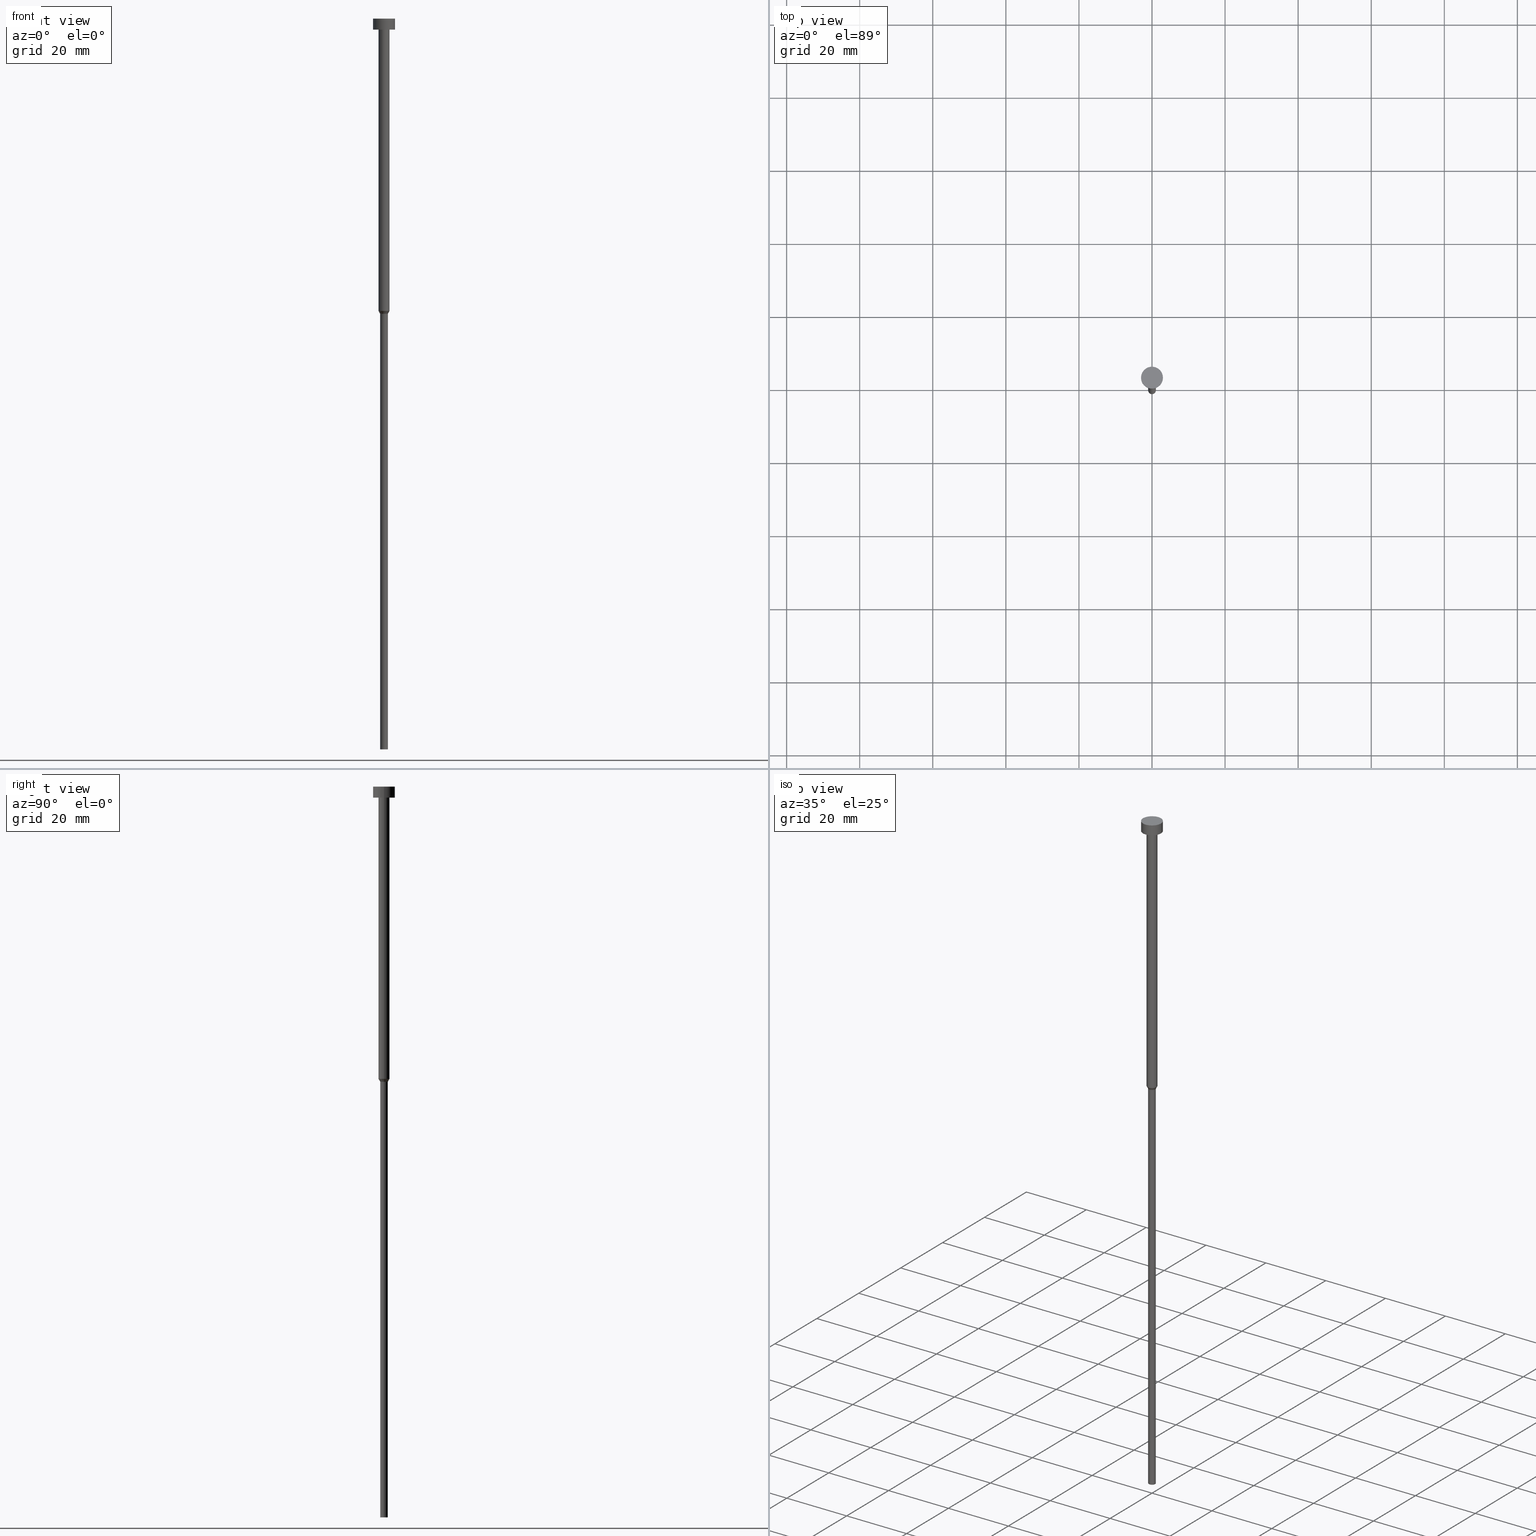
[diagram: canonical four-view strip — front | top / right | iso, engineering-drawing reading convention]
A machine part, canonical four-view strip (front | top / right | iso — engineering-drawing reading convention). The complete STEP part file that produces these views, byte-faithful:
ISO-10303-21;
HEADER;
FILE_DESCRIPTION (( 'STEP AP203' ),
    '1' );
FILE_NAME ('960d.STEP',
    '2023-02-13T09:03:21',
    ( '' ),
    ( '' ),
    'SwSTEP 2.0',
    'SolidWorks 2019',
    '' );
FILE_SCHEMA (( 'CONFIG_CONTROL_DESIGN' ));
ENDSEC;

DATA;
#1 = CC_DESIGN_PERSON_AND_ORGANIZATION_ASSIGNMENT ( #76, #188, ( #14 ) ) ;
#2 = AXIS2_PLACEMENT_3D ( 'NONE', #349, #266, #321 ) ;
#3 = CARTESIAN_POINT ( 'NONE',  ( 3.000000000000000000, 0.000000000000000000, -3.000000000000000888 ) ) ;
#4 = CIRCLE ( 'NONE', #215, 1.500000000000000000 ) ;
#5 = CARTESIAN_POINT ( 'NONE',  ( 0.000000000000000000, 0.000000000000000000, -3.000000000000000888 ) ) ;
#6 = EDGE_CURVE ( 'NONE', #292, #20, #126, .T. ) ;
#7 = DIRECTION ( 'NONE',  ( 0.000000000000000000, 0.000000000000000000, -1.000000000000000000 ) ) ;
#8 = PLANE ( 'NONE',  #250 ) ;
#9 = VERTEX_POINT ( 'NONE', #264 ) ;
#10 = ORIENTED_EDGE ( 'NONE', *, *, #333, .F. ) ;
#11 = DIRECTION ( 'NONE',  ( 0.000000000000000000, 0.000000000000000000, 1.000000000000000000 ) ) ;
#12 = FACE_OUTER_BOUND ( 'NONE', #122, .T. ) ;
#13 = APPROVAL_STATUS ( 'not_yet_approved' ) ;
#14 = PRODUCT_DEFINITION_FORMATION_WITH_SPECIFIED_SOURCE ( 'LIBOVOLN�', '', #182, .NOT_KNOWN. ) ;
#15 = ORIENTED_EDGE ( 'NONE', *, *, #268, .F. ) ;
#16 = SHAPE_DEFINITION_REPRESENTATION ( #67, #300 ) ;
#17 = CC_DESIGN_PERSON_AND_ORGANIZATION_ASSIGNMENT ( #71, #40, ( #14 ) ) ;
#18 = EDGE_LOOP ( 'NONE', ( #240, #309 ) ) ;
#19 = CALENDAR_DATE ( 2023, 13, 2 ) ;
#20 = VERTEX_POINT ( 'NONE', #148 ) ;
#21 = CIRCLE ( 'NONE', #303, 1.050000000000000044 ) ;
#22 = APPROVAL_ROLE ( '' ) ;
#23 = DIRECTION ( 'NONE',  ( 1.000000000000000000, 0.000000000000000000, 0.000000000000000000 ) ) ;
#24 = SECURITY_CLASSIFICATION ( '', '', #104 ) ;
#25 = CARTESIAN_POINT ( 'NONE',  ( 0.000000000000000000, 0.000000000000000000, -80.00000000000000000 ) ) ;
#26 = CC_DESIGN_PERSON_AND_ORGANIZATION_ASSIGNMENT ( #130, #243, ( #163 ) ) ;
#27 = DIRECTION ( 'NONE',  ( -0.000000000000000000, -0.000000000000000000, 1.000000000000000000 ) ) ;
#28 = LINE ( 'NONE', #327, #225 ) ;
#29 = CARTESIAN_POINT ( 'NONE',  ( 0.000000000000000000, 0.000000000000000000, -80.00000000000000000 ) ) ;
#30 = FACE_OUTER_BOUND ( 'NONE', #211, .T. ) ;
#31 = AXIS2_PLACEMENT_3D ( 'NONE', #258, #36, #261 ) ;
#32 = ORIENTED_EDGE ( 'NONE', *, *, #236, .T. ) ;
#33 = LINE ( 'NONE', #114, #305 ) ;
#34 = EDGE_CURVE ( 'NONE', #315, #9, #151, .T. ) ;
#35 = EDGE_LOOP ( 'NONE', ( #185, #65, #113, #283 ) ) ;
#36 = DIRECTION ( 'NONE',  ( -0.000000000000000000, -0.000000000000000000, 1.000000000000000000 ) ) ;
#37 = DIRECTION ( 'NONE',  ( -0.000000000000000000, -0.000000000000000000, 1.000000000000000000 ) ) ;
#38 = ADVANCED_FACE ( 'NONE', ( #12 ), #325, .T. ) ;
#39 = ORIENTED_EDGE ( 'NONE', *, *, #34, .F. ) ;
#40 = PERSON_AND_ORGANIZATION_ROLE ( 'design_supplier' ) ;
#41 = AXIS2_PLACEMENT_3D ( 'NONE', #147, #7, #64 ) ;
#42 = CARTESIAN_POINT ( 'NONE',  ( 0.000000000000000000, 0.000000000000000000, -3.000000000000000888 ) ) ;
#43 = COORDINATED_UNIVERSAL_TIME_OFFSET ( 1, 0, .AHEAD. ) ;
#44 = VERTEX_POINT ( 'NONE', #132 ) ;
#45 = APPROVAL_DATE_TIME ( #73, #144 ) ;
#46 = AXIS2_PLACEMENT_3D ( 'NONE', #228, #221, #198 ) ;
#47 = EDGE_CURVE ( 'NONE', #209, #345, #89, .T. ) ;
#48 = DIRECTION ( 'NONE',  ( -0.000000000000000000, -0.000000000000000000, 1.000000000000000000 ) ) ;
#49 = ADVANCED_FACE ( 'NONE', ( #323 ), #244, .T. ) ;
#50 =( GEOMETRIC_REPRESENTATION_CONTEXT ( 3 ) GLOBAL_UNCERTAINTY_ASSIGNED_CONTEXT ( ( #281 ) ) GLOBAL_UNIT_ASSIGNED_CONTEXT ( ( #308, #88, #180 ) ) REPRESENTATION_CONTEXT ( 'NONE', 'WORKASPACE' ) );
#51 = DIRECTION ( 'NONE',  ( -0.000000000000000000, -0.000000000000000000, 1.000000000000000000 ) ) ;
#52 = CYLINDRICAL_SURFACE ( 'NONE', #121, 3.000000000000000000 ) ;
#53 = CYLINDRICAL_SURFACE ( 'NONE', #81, 1.500000000000000000 ) ;
#54 = EDGE_CURVE ( 'NONE', #315, #292, #302, .T. ) ;
#55 = PERSON ( 'NEUR�EN�', 'NEUR�EN�', 'NEUR�EN�', ('NEUR�EN�'), ('NEUR�EN�'), ('NEUR�EN�') ) ;
#56 = PLANE ( 'NONE',  #41 ) ;
#57 = APPROVAL_PERSON_ORGANIZATION ( #217, #144, #263 ) ;
#58 = DIRECTION ( 'NONE',  ( -0.000000000000000000, -0.000000000000000000, 1.000000000000000000 ) ) ;
#59 = CARTESIAN_POINT ( 'NONE',  ( -1.500000000000000000, 1.836970198721029934E-16, -80.00000000000000000 ) ) ;
#60 = ORIENTED_EDGE ( 'NONE', *, *, #150, .F. ) ;
#61 = EDGE_CURVE ( 'NONE', #44, #310, #253, .T. ) ;
#62 = CARTESIAN_POINT ( 'NONE',  ( 1.500000000000000000, 0.000000000000000000, -80.00000000000000000 ) ) ;
#63 = VERTEX_POINT ( 'NONE', #137 ) ;
#64 = DIRECTION ( 'NONE',  ( -1.000000000000000000, 0.000000000000000000, -0.000000000000000000 ) ) ;
#65 = ORIENTED_EDGE ( 'NONE', *, *, #94, .T. ) ;
#66 = APPROVAL_ROLE ( '' ) ;
#67 = PRODUCT_DEFINITION_SHAPE ( 'NONE', 'NONE',  #163 ) ;
#68 = EDGE_CURVE ( 'NONE', #233, #63, #354, .T. ) ;
#69 = ORIENTED_EDGE ( 'NONE', *, *, #128, .T. ) ;
#70 = AXIS2_PLACEMENT_3D ( 'NONE', #271, #192, #273 ) ;
#71 = PERSON_AND_ORGANIZATION ( #55, #255 ) ;
#72 = ORIENTED_EDGE ( 'NONE', *, *, #94, .F. ) ;
#73 = DATE_AND_TIME ( #316, #86 ) ;
#74 = LOCAL_TIME ( 10, 3, 21.00000000000000000, #184 ) ;
#75 = ORIENTED_EDGE ( 'NONE', *, *, #128, .F. ) ;
#76 = PERSON_AND_ORGANIZATION ( #55, #255 ) ;
#77 = EDGE_CURVE ( 'NONE', #179, #181, #164, .T. ) ;
#78 = DIRECTION ( 'NONE',  ( -0.000000000000000000, -0.000000000000000000, 1.000000000000000000 ) ) ;
#79 = CARTESIAN_POINT ( 'NONE',  ( -1.050000000000000044, 1.285879139104720978E-16, 0.000000000000000000 ) ) ;
#80 = DIRECTION ( 'NONE',  ( -0.5000000000000034417, 6.123233995736807944E-17, 0.8660254037844367092 ) ) ;
#81 = AXIS2_PLACEMENT_3D ( 'NONE', #194, #82, #165 ) ;
#82 = DIRECTION ( 'NONE',  ( -0.000000000000000000, -0.000000000000000000, 1.000000000000000000 ) ) ;
#83 = ORIENTED_EDGE ( 'NONE', *, *, #6, .T. ) ;
#84 = CARTESIAN_POINT ( 'NONE',  ( 0.000000000000000000, 0.000000000000000000, -3.673940397442059868E-16 ) ) ;
#85 = DIRECTION ( 'NONE',  ( 1.000000000000000000, 0.000000000000000000, 0.000000000000000000 ) ) ;
#86 = LOCAL_TIME ( 10, 3, 21.00000000000000000, #43 ) ;
#87 = CARTESIAN_POINT ( 'NONE',  ( 0.000000000000000000, 0.000000000000000000, -1.836970198721029934E-16 ) ) ;
#88 =( NAMED_UNIT ( * ) PLANE_ANGLE_UNIT ( ) SI_UNIT ( $, .RADIAN. ) );
#89 = CIRCLE ( 'NONE', #230, 1.050000000000000044 ) ;
#90 = CARTESIAN_POINT ( 'NONE',  ( 0.000000000000000000, 0.000000000000000000, 0.000000000000000000 ) ) ;
#91 = CONICAL_SURFACE ( 'NONE', #297, 1.500000000000000000, 0.5235987755983028125 ) ;
#92 = EDGE_LOOP ( 'NONE', ( #317, #15 ) ) ;
#93 = DIRECTION ( 'NONE',  ( 1.000000000000000000, 0.000000000000000000, 0.000000000000000000 ) ) ;
#94 = EDGE_CURVE ( 'NONE', #310, #209, #326, .T. ) ;
#95 = CARTESIAN_POINT ( 'NONE',  ( 1.500000000000000000, 0.000000000000000000, 0.000000000000000000 ) ) ;
#96 = ORIENTED_EDGE ( 'NONE', *, *, #223, .F. ) ;
#97 = DATE_TIME_ROLE ( 'creation_date' ) ;
#98 = ORIENTED_EDGE ( 'NONE', *, *, #268, .T. ) ;
#99 = DATE_AND_TIME ( #296, #74 ) ;
#100 = ORIENTED_EDGE ( 'NONE', *, *, #6, .F. ) ;
#101 = PERSON_AND_ORGANIZATION_ROLE ( 'classification_officer' ) ;
#102 = EDGE_CURVE ( 'NONE', #9, #20, #339, .T. ) ;
#103 = CALENDAR_DATE ( 2023, 13, 2 ) ;
#104 = SECURITY_CLASSIFICATION_LEVEL ( 'unclassified' ) ;
#105 = DIRECTION ( 'NONE',  ( -0.000000000000000000, -0.000000000000000000, 1.000000000000000000 ) ) ;
#106 = EDGE_CURVE ( 'NONE', #310, #44, #134, .T. ) ;
#107 = CC_DESIGN_APPROVAL ( #213, ( #163 ) ) ;
#108 = DIRECTION ( 'NONE',  ( -0.000000000000000000, -0.000000000000000000, 1.000000000000000000 ) ) ;
#109 = CARTESIAN_POINT ( 'NONE',  ( -3.000000000000000000, 3.673940397442059868E-16, 0.000000000000000000 ) ) ;
#110 = DIRECTION ( 'NONE',  ( 1.000000000000000000, 0.000000000000000000, 0.000000000000000000 ) ) ;
#111 = CARTESIAN_POINT ( 'NONE',  ( 0.000000000000000000, 0.000000000000000000, -3.000000000000000888 ) ) ;
#112 = DIRECTION ( 'NONE',  ( 1.000000000000000000, 0.000000000000000000, 0.000000000000000000 ) ) ;
#113 = ORIENTED_EDGE ( 'NONE', *, *, #201, .F. ) ;
#114 = CARTESIAN_POINT ( 'NONE',  ( 1.050000000000000044, 0.000000000000000000, 0.000000000000000000 ) ) ;
#115 = VECTOR ( 'NONE', #275, 1000.000000000000000 ) ;
#116 = CARTESIAN_POINT ( 'NONE',  ( 0.000000000000000000, 0.000000000000000000, 0.000000000000000000 ) ) ;
#117 = DIRECTION ( 'NONE',  ( 1.000000000000000000, 0.000000000000000000, 0.000000000000000000 ) ) ;
#118 = CARTESIAN_POINT ( 'NONE',  ( 1.050000000000000044, 0.000000000000000000, -80.77942286340598343 ) ) ;
#119 = EDGE_LOOP ( 'NONE', ( #335, #183, #257, #10 ) ) ;
#120 = DIRECTION ( 'NONE',  ( 1.000000000000000000, 0.000000000000000000, 0.000000000000000000 ) ) ;
#121 = AXIS2_PLACEMENT_3D ( 'NONE', #167, #27, #301 ) ;
#122 = EDGE_LOOP ( 'NONE', ( #237, #329, #214, #39 ) ) ;
#123 = MECHANICAL_CONTEXT ( 'NONE', #193, 'mechanical' ) ;
#124 = ORIENTED_EDGE ( 'NONE', *, *, #54, .F. ) ;
#125 = ORIENTED_EDGE ( 'NONE', *, *, #47, .F. ) ;
#126 = CIRCLE ( 'NONE', #320, 1.500000000000000000 ) ;
#127 = APPLICATION_PROTOCOL_DEFINITION ( 'international standard', 'config_control_design', 1994, #241 ) ;
#128 = EDGE_CURVE ( 'NONE', #181, #63, #178, .T. ) ;
#129 = ORIENTED_EDGE ( 'NONE', *, *, #173, .T. ) ;
#130 = PERSON_AND_ORGANIZATION ( #55, #255 ) ;
#131 = CC_DESIGN_APPROVAL ( #158, ( #24 ) ) ;
#132 = CARTESIAN_POINT ( 'NONE',  ( 1.050000000000000044, 0.000000000000000000, -200.0000000000000000 ) ) ;
#133 = ADVANCED_FACE ( 'NONE', ( #304 ), #52, .T. ) ;
#134 = CIRCLE ( 'NONE', #2, 1.050000000000000044 ) ;
#135 = FACE_OUTER_BOUND ( 'NONE', #35, .T. ) ;
#136 = CC_DESIGN_APPROVAL ( #144, ( #14 ) ) ;
#137 = CARTESIAN_POINT ( 'NONE',  ( 3.000000000000000000, 0.000000000000000000, -3.673940397442059868E-16 ) ) ;
#138 = CARTESIAN_POINT ( 'NONE',  ( -3.000000000000000000, 3.673940397442059868E-16, -3.000000000000000888 ) ) ;
#139 = CARTESIAN_POINT ( 'NONE',  ( 0.000000000000000000, 0.000000000000000000, -80.77942286340598343 ) ) ;
#140 = DIRECTION ( 'NONE',  ( 1.000000000000000000, 0.000000000000000000, 0.000000000000000000 ) ) ;
#141 = AXIS2_PLACEMENT_3D ( 'NONE', #25, #51, #270 ) ;
#142 = ADVANCED_FACE ( 'NONE', ( #199 ), #53, .T. ) ;
#143 = CYLINDRICAL_SURFACE ( 'NONE', #203, 1.500000000000000000 ) ;
#144 = APPROVAL ( #293, 'NEUR�EN�' ) ;
#145 = DIRECTION ( 'NONE',  ( 1.000000000000000000, 0.000000000000000000, 0.000000000000000000 ) ) ;
#146 = ORIENTED_EDGE ( 'NONE', *, *, #54, .T. ) ;
#147 = CARTESIAN_POINT ( 'NONE',  ( 0.000000000000000000, -3.000000000000000000, -3.000000000000000888 ) ) ;
#148 = CARTESIAN_POINT ( 'NONE',  ( 1.500000000000000000, 0.000000000000000000, -3.000000000000000888 ) ) ;
#149 = DIRECTION ( 'NONE',  ( -0.000000000000000000, -0.000000000000000000, 1.000000000000000000 ) ) ;
#150 = EDGE_CURVE ( 'NONE', #63, #181, #153, .T. ) ;
#151 = CIRCLE ( 'NONE', #31, 1.500000000000000000 ) ;
#152 = ORIENTED_EDGE ( 'NONE', *, *, #68, .F. ) ;
#153 = CIRCLE ( 'NONE', #161, 3.000000000000000000 ) ;
#154 = ORIENTED_EDGE ( 'NONE', *, *, #277, .T. ) ;
#155 = COORDINATED_UNIVERSAL_TIME_OFFSET ( 1, 0, .AHEAD. ) ;
#156 = DIRECTION ( 'NONE',  ( 1.000000000000000000, 0.000000000000000000, 0.000000000000000000 ) ) ;
#157 = CALENDAR_DATE ( 2023, 13, 2 ) ;
#158 = APPROVAL ( #291, 'NEUR�EN�' ) ;
#159 = ORIENTED_EDGE ( 'NONE', *, *, #106, .T. ) ;
#160 = AXIS2_PLACEMENT_3D ( 'NONE', #195, #298, #218 ) ;
#161 = AXIS2_PLACEMENT_3D ( 'NONE', #84, #108, #23 ) ;
#162 = PERSON_AND_ORGANIZATION ( #55, #255 ) ;
#163 = PRODUCT_DEFINITION ( 'NEZN�M�', '', #14, #170 ) ;
#164 = LINE ( 'NONE', #109, #239 ) ;
#165 = DIRECTION ( 'NONE',  ( 1.000000000000000000, 0.000000000000000000, 0.000000000000000000 ) ) ;
#166 = CARTESIAN_POINT ( 'NONE',  ( -1.500000000000000000, 1.836970198721029934E-16, 0.000000000000000000 ) ) ;
#167 = CARTESIAN_POINT ( 'NONE',  ( 0.000000000000000000, 0.000000000000000000, 0.000000000000000000 ) ) ;
#168 = AXIS2_PLACEMENT_3D ( 'NONE', #254, #306, #175 ) ;
#169 = ADVANCED_FACE ( 'NONE', ( #135 ), #248, .T. ) ;
#170 = DESIGN_CONTEXT ( 'detailed design', #241, 'design' ) ;
#171 = CARTESIAN_POINT ( 'NONE',  ( -1.500000000000000000, 1.836970198721029934E-16, -3.000000000000000888 ) ) ;
#172 = AXIS2_PLACEMENT_3D ( 'NONE', #90, #177, #145 ) ;
#173 = EDGE_CURVE ( 'NONE', #9, #315, #4, .T. ) ;
#174 = DIRECTION ( 'NONE',  ( 0.5000000000000034417, 0.000000000000000000, 0.8660254037844367092 ) ) ;
#175 = DIRECTION ( 'NONE',  ( 1.000000000000000000, 0.000000000000000000, 0.000000000000000000 ) ) ;
#176 = ORIENTED_EDGE ( 'NONE', *, *, #102, .T. ) ;
#177 = DIRECTION ( 'NONE',  ( -0.000000000000000000, -0.000000000000000000, 1.000000000000000000 ) ) ;
#178 = CIRCLE ( 'NONE', #46, 3.000000000000000000 ) ;
#179 = VERTEX_POINT ( 'NONE', #138 ) ;
#180 =( NAMED_UNIT ( * ) SI_UNIT ( $, .STERADIAN. ) SOLID_ANGLE_UNIT ( ) );
#181 = VERTEX_POINT ( 'NONE', #249 ) ;
#182 = PRODUCT ( '960d', '960d', '', ( #123 ) ) ;
#183 = ORIENTED_EDGE ( 'NONE', *, *, #219, .T. ) ;
#184 = COORDINATED_UNIVERSAL_TIME_OFFSET ( 1, 0, .AHEAD. ) ;
#185 = ORIENTED_EDGE ( 'NONE', *, *, #61, .T. ) ;
#186 = PERSON_AND_ORGANIZATION ( #55, #255 ) ;
#187 = ORIENTED_EDGE ( 'NONE', *, *, #34, .T. ) ;
#188 = PERSON_AND_ORGANIZATION_ROLE ( 'creator' ) ;
#189 = DIRECTION ( 'NONE',  ( -0.000000000000000000, -0.000000000000000000, 1.000000000000000000 ) ) ;
#190 = CIRCLE ( 'NONE', #351, 3.000000000000000000 ) ;
#191 = LOCAL_TIME ( 10, 3, 21.00000000000000000, #155 ) ;
#192 = DIRECTION ( 'NONE',  ( -0.000000000000000000, -0.000000000000000000, 1.000000000000000000 ) ) ;
#193 = APPLICATION_CONTEXT ( 'configuration controlled 3d designs of mechanical parts and assemblies' ) ;
#194 = CARTESIAN_POINT ( 'NONE',  ( 0.000000000000000000, 0.000000000000000000, 0.000000000000000000 ) ) ;
#195 = CARTESIAN_POINT ( 'NONE',  ( 0.000000000000000000, 0.000000000000000000, -200.0000000000000000 ) ) ;
#196 = DIRECTION ( 'NONE',  ( 1.000000000000000000, 0.000000000000000000, 0.000000000000000000 ) ) ;
#197 = AXIS2_PLACEMENT_3D ( 'NONE', #111, #226, #251 ) ;
#198 = DIRECTION ( 'NONE',  ( 1.000000000000000000, 0.000000000000000000, 0.000000000000000000 ) ) ;
#199 = FACE_OUTER_BOUND ( 'NONE', #312, .T. ) ;
#200 = VECTOR ( 'NONE', #48, 1000.000000000000000 ) ;
#201 = EDGE_CURVE ( 'NONE', #345, #209, #21, .T. ) ;
#202 = FACE_OUTER_BOUND ( 'NONE', #216, .T. ) ;
#203 = AXIS2_PLACEMENT_3D ( 'NONE', #116, #58, #93 ) ;
#204 = CC_DESIGN_SECURITY_CLASSIFICATION ( #24, ( #14 ) ) ;
#205 = DIRECTION ( 'NONE',  ( -0.000000000000000000, -0.000000000000000000, 1.000000000000000000 ) ) ;
#206 = EDGE_LOOP ( 'NONE', ( #341, #98, #235, #75 ) ) ;
#207 = FACE_OUTER_BOUND ( 'NONE', #206, .T. ) ;
#208 = AXIS2_PLACEMENT_3D ( 'NONE', #5, #276, #140 ) ;
#209 = VERTEX_POINT ( 'NONE', #328 ) ;
#210 = FACE_OUTER_BOUND ( 'NONE', #343, .T. ) ;
#211 = EDGE_LOOP ( 'NONE', ( #72, #159, #154, #125 ) ) ;
#212 = APPROVAL_DATE_TIME ( #289, #213 ) ;
#213 = APPROVAL ( #13, 'NEUR�EN�' ) ;
#214 = ORIENTED_EDGE ( 'NONE', *, *, #333, .T. ) ;
#215 = AXIS2_PLACEMENT_3D ( 'NONE', #324, #78, #196 ) ;
#216 = EDGE_LOOP ( 'NONE', ( #290, #69 ) ) ;
#217 = PERSON_AND_ORGANIZATION ( #55, #255 ) ;
#218 = DIRECTION ( 'NONE',  ( -1.000000000000000000, 0.000000000000000000, -0.000000000000000000 ) ) ;
#219 = EDGE_CURVE ( 'NONE', #209, #315, #28, .T. ) ;
#220 = APPROVAL_PERSON_ORGANIZATION ( #267, #213, #66 ) ;
#221 = DIRECTION ( 'NONE',  ( -0.000000000000000000, -0.000000000000000000, 1.000000000000000000 ) ) ;
#222 = DIRECTION ( 'NONE',  ( -0.000000000000000000, -0.000000000000000000, 1.000000000000000000 ) ) ;
#223 = EDGE_CURVE ( 'NONE', #20, #292, #269, .T. ) ;
#224 = DIRECTION ( 'NONE',  ( -0.000000000000000000, -0.000000000000000000, 1.000000000000000000 ) ) ;
#225 = VECTOR ( 'NONE', #80, 1000.000000000000000 ) ;
#226 = DIRECTION ( 'NONE',  ( -0.000000000000000000, -0.000000000000000000, 1.000000000000000000 ) ) ;
#227 = CC_DESIGN_DATE_AND_TIME_ASSIGNMENT ( #340, #97, ( #163 ) ) ;
#228 = CARTESIAN_POINT ( 'NONE',  ( 0.000000000000000000, 0.000000000000000000, -3.673940397442059868E-16 ) ) ;
#229 = CARTESIAN_POINT ( 'NONE',  ( 0.000000000000000000, 0.000000000000000000, -3.000000000000000888 ) ) ;
#230 = AXIS2_PLACEMENT_3D ( 'NONE', #139, #105, #347 ) ;
#231 = DIRECTION ( 'NONE',  ( -0.000000000000000000, -0.000000000000000000, 1.000000000000000000 ) ) ;
#232 = LINE ( 'NONE', #62, #311 ) ;
#233 = VERTEX_POINT ( 'NONE', #3 ) ;
#234 = FACE_BOUND ( 'NONE', #242, .T. ) ;
#235 = ORIENTED_EDGE ( 'NONE', *, *, #68, .T. ) ;
#236 = EDGE_CURVE ( 'NONE', #233, #179, #344, .T. ) ;
#237 = ORIENTED_EDGE ( 'NONE', *, *, #219, .F. ) ;
#238 = COORDINATED_UNIVERSAL_TIME_OFFSET ( 1, 0, .AHEAD. ) ;
#239 = VECTOR ( 'NONE', #224, 1000.000000000000000 ) ;
#240 = ORIENTED_EDGE ( 'NONE', *, *, #61, .F. ) ;
#241 = APPLICATION_CONTEXT ( 'configuration controlled 3d designs of mechanical parts and assemblies' ) ;
#242 = EDGE_LOOP ( 'NONE', ( #331, #83 ) ) ;
#243 = PERSON_AND_ORGANIZATION_ROLE ( 'creator' ) ;
#244 = PLANE ( 'NONE',  #160 ) ;
#245 = DATE_AND_TIME ( #19, #191 ) ;
#246 = VECTOR ( 'NONE', #37, 1000.000000000000000 ) ;
#247 = CC_DESIGN_DATE_AND_TIME_ASSIGNMENT ( #99, #265, ( #24 ) ) ;
#248 = CYLINDRICAL_SURFACE ( 'NONE', #338, 1.050000000000000044 ) ;
#249 = CARTESIAN_POINT ( 'NONE',  ( -3.000000000000000000, 3.673940397442059868E-16, -3.673940397442059868E-16 ) ) ;
#250 = AXIS2_PLACEMENT_3D ( 'NONE', #87, #279, #252 ) ;
#251 = DIRECTION ( 'NONE',  ( 1.000000000000000000, 0.000000000000000000, 0.000000000000000000 ) ) ;
#252 = DIRECTION ( 'NONE',  ( 1.000000000000000000, 0.000000000000000000, 0.000000000000000000 ) ) ;
#253 = CIRCLE ( 'NONE', #70, 1.050000000000000044 ) ;
#254 = CARTESIAN_POINT ( 'NONE',  ( 0.000000000000000000, 0.000000000000000000, 0.000000000000000000 ) ) ;
#255 = ORGANIZATION ( 'NEUR�EN�', 'NEUR�EN�', '' ) ;
#256 = LOCAL_TIME ( 10, 3, 21.00000000000000000, #238 ) ;
#257 = ORIENTED_EDGE ( 'NONE', *, *, #173, .F. ) ;
#258 = CARTESIAN_POINT ( 'NONE',  ( 0.000000000000000000, 0.000000000000000000, -80.00000000000000000 ) ) ;
#259 = CARTESIAN_POINT ( 'NONE',  ( 0.000000000000000000, 0.000000000000000000, 0.000000000000000000 ) ) ;
#260 = ADVANCED_FACE ( 'NONE', ( #207 ), #334, .T. ) ;
#261 = DIRECTION ( 'NONE',  ( 1.000000000000000000, 0.000000000000000000, 0.000000000000000000 ) ) ;
#262 = ORIENTED_EDGE ( 'NONE', *, *, #77, .T. ) ;
#263 = APPROVAL_ROLE ( '' ) ;
#264 = CARTESIAN_POINT ( 'NONE',  ( 1.500000000000000000, 0.000000000000000000, -80.00000000000000000 ) ) ;
#265 = DATE_TIME_ROLE ( 'classification_date' ) ;
#266 = DIRECTION ( 'NONE',  ( -0.000000000000000000, -0.000000000000000000, 1.000000000000000000 ) ) ;
#267 = PERSON_AND_ORGANIZATION ( #55, #255 ) ;
#268 = EDGE_CURVE ( 'NONE', #179, #233, #190, .T. ) ;
#269 = CIRCLE ( 'NONE', #208, 1.500000000000000000 ) ;
#270 = DIRECTION ( 'NONE',  ( 1.000000000000000000, 0.000000000000000000, 0.000000000000000000 ) ) ;
#271 = CARTESIAN_POINT ( 'NONE',  ( 0.000000000000000000, 0.000000000000000000, -200.0000000000000000 ) ) ;
#272 = ADVANCED_FACE ( 'NONE', ( #210 ), #143, .T. ) ;
#273 = DIRECTION ( 'NONE',  ( 1.000000000000000000, 0.000000000000000000, 0.000000000000000000 ) ) ;
#274 = APPROVAL_PERSON_ORGANIZATION ( #162, #158, #22 ) ;
#275 = DIRECTION ( 'NONE',  ( -0.000000000000000000, -0.000000000000000000, 1.000000000000000000 ) ) ;
#276 = DIRECTION ( 'NONE',  ( -0.000000000000000000, -0.000000000000000000, 1.000000000000000000 ) ) ;
#277 = EDGE_CURVE ( 'NONE', #44, #345, #33, .T. ) ;
#278 = AXIS2_PLACEMENT_3D ( 'NONE', #259, #11, #120 ) ;
#279 = DIRECTION ( 'NONE',  ( 0.000000000000000000, -0.000000000000000000, 1.000000000000000000 ) ) ;
#280 = FACE_OUTER_BOUND ( 'NONE', #119, .T. ) ;
#281 = UNCERTAINTY_MEASURE_WITH_UNIT (LENGTH_MEASURE( 1.000000000000000082E-05 ), #308, 'distance_accuracy_value', 'NONE');
#282 = CC_DESIGN_PERSON_AND_ORGANIZATION_ASSIGNMENT ( #186, #294, ( #182 ) ) ;
#283 = ORIENTED_EDGE ( 'NONE', *, *, #277, .F. ) ;
#284 = APPLICATION_PROTOCOL_DEFINITION ( 'international standard', 'config_control_design', 1994, #193 ) ;
#285 = ORIENTED_EDGE ( 'NONE', *, *, #102, .F. ) ;
#286 = CYLINDRICAL_SURFACE ( 'NONE', #172, 1.050000000000000044 ) ;
#287 = ADVANCED_FACE ( 'NONE', ( #234, #337 ), #56, .T. ) ;
#288 = DIRECTION ( 'NONE',  ( -0.000000000000000000, -0.000000000000000000, 1.000000000000000000 ) ) ;
#289 = DATE_AND_TIME ( #157, #256 ) ;
#290 = ORIENTED_EDGE ( 'NONE', *, *, #150, .T. ) ;
#291 = APPROVAL_STATUS ( 'not_yet_approved' ) ;
#292 = VERTEX_POINT ( 'NONE', #171 ) ;
#293 = APPROVAL_STATUS ( 'not_yet_approved' ) ;
#294 = PERSON_AND_ORGANIZATION_ROLE ( 'design_owner' ) ;
#295 = VECTOR ( 'NONE', #189, 1000.000000000000000 ) ;
#296 = CALENDAR_DATE ( 2023, 13, 2 ) ;
#297 = AXIS2_PLACEMENT_3D ( 'NONE', #29, #205, #117 ) ;
#298 = DIRECTION ( 'NONE',  ( 0.000000000000000000, 0.000000000000000000, -1.000000000000000000 ) ) ;
#299 = CARTESIAN_POINT ( 'NONE',  ( 3.000000000000000000, 0.000000000000000000, 0.000000000000000000 ) ) ;
#300 = ADVANCED_BREP_SHAPE_REPRESENTATION ( '960d', ( #352, #278 ), #50 ) ;
#301 = DIRECTION ( 'NONE',  ( 1.000000000000000000, 0.000000000000000000, 0.000000000000000000 ) ) ;
#302 = LINE ( 'NONE', #166, #295 ) ;
#303 = AXIS2_PLACEMENT_3D ( 'NONE', #355, #330, #110 ) ;
#304 = FACE_OUTER_BOUND ( 'NONE', #318, .T. ) ;
#305 = VECTOR ( 'NONE', #231, 1000.000000000000000 ) ;
#306 = DIRECTION ( 'NONE',  ( -0.000000000000000000, -0.000000000000000000, 1.000000000000000000 ) ) ;
#307 = CC_DESIGN_PERSON_AND_ORGANIZATION_ASSIGNMENT ( #319, #101, ( #24 ) ) ;
#308 =( LENGTH_UNIT ( ) NAMED_UNIT ( * ) SI_UNIT ( .MILLI., .METRE. ) );
#309 = ORIENTED_EDGE ( 'NONE', *, *, #106, .F. ) ;
#310 = VERTEX_POINT ( 'NONE', #332 ) ;
#311 = VECTOR ( 'NONE', #174, 1000.000000000000000 ) ;
#312 = EDGE_LOOP ( 'NONE', ( #129, #146, #96, #285 ) ) ;
#313 = APPROVAL_DATE_TIME ( #245, #158 ) ;
#314 = PRODUCT_RELATED_PRODUCT_CATEGORY ( 'detail', '', ( #182 ) ) ;
#315 = VERTEX_POINT ( 'NONE', #59 ) ;
#316 = CALENDAR_DATE ( 2023, 13, 2 ) ;
#317 = ORIENTED_EDGE ( 'NONE', *, *, #236, .F. ) ;
#318 = EDGE_LOOP ( 'NONE', ( #32, #262, #60, #152 ) ) ;
#319 = PERSON_AND_ORGANIZATION ( #55, #255 ) ;
#320 = AXIS2_PLACEMENT_3D ( 'NONE', #42, #288, #156 ) ;
#321 = DIRECTION ( 'NONE',  ( 1.000000000000000000, 0.000000000000000000, 0.000000000000000000 ) ) ;
#322 = LOCAL_TIME ( 10, 3, 21.00000000000000000, #346 ) ;
#323 = FACE_OUTER_BOUND ( 'NONE', #18, .T. ) ;
#324 = CARTESIAN_POINT ( 'NONE',  ( 0.000000000000000000, 0.000000000000000000, -80.00000000000000000 ) ) ;
#325 = CONICAL_SURFACE ( 'NONE', #141, 1.500000000000000000, 0.5235987755983028125 ) ;
#326 = LINE ( 'NONE', #79, #115 ) ;
#327 = CARTESIAN_POINT ( 'NONE',  ( -1.500000000000000000, 1.836970198721029934E-16, -80.00000000000000000 ) ) ;
#328 = CARTESIAN_POINT ( 'NONE',  ( -1.050000000000000044, 1.285879139104720978E-16, -80.77942286340598343 ) ) ;
#329 = ORIENTED_EDGE ( 'NONE', *, *, #47, .T. ) ;
#330 = DIRECTION ( 'NONE',  ( -0.000000000000000000, -0.000000000000000000, 1.000000000000000000 ) ) ;
#331 = ORIENTED_EDGE ( 'NONE', *, *, #223, .T. ) ;
#332 = CARTESIAN_POINT ( 'NONE',  ( -1.050000000000000044, 1.285879139104720978E-16, -200.0000000000000000 ) ) ;
#333 = EDGE_CURVE ( 'NONE', #345, #9, #232, .T. ) ;
#334 = CYLINDRICAL_SURFACE ( 'NONE', #168, 3.000000000000000000 ) ;
#335 = ORIENTED_EDGE ( 'NONE', *, *, #201, .T. ) ;
#336 = ADVANCED_FACE ( 'NONE', ( #202 ), #8, .T. ) ;
#337 = FACE_OUTER_BOUND ( 'NONE', #92, .T. ) ;
#338 = AXIS2_PLACEMENT_3D ( 'NONE', #353, #222, #112 ) ;
#339 = LINE ( 'NONE', #95, #246 ) ;
#340 = DATE_AND_TIME ( #103, #322 ) ;
#341 = ORIENTED_EDGE ( 'NONE', *, *, #77, .F. ) ;
#342 = ADVANCED_FACE ( 'NONE', ( #280 ), #91, .T. ) ;
#343 = EDGE_LOOP ( 'NONE', ( #124, #187, #176, #100 ) ) ;
#344 = CIRCLE ( 'NONE', #197, 3.000000000000000000 ) ;
#345 = VERTEX_POINT ( 'NONE', #118 ) ;
#346 = COORDINATED_UNIVERSAL_TIME_OFFSET ( 1, 0, .AHEAD. ) ;
#347 = DIRECTION ( 'NONE',  ( 1.000000000000000000, 0.000000000000000000, 0.000000000000000000 ) ) ;
#348 = ADVANCED_FACE ( 'NONE', ( #30 ), #286, .T. ) ;
#349 = CARTESIAN_POINT ( 'NONE',  ( 0.000000000000000000, 0.000000000000000000, -200.0000000000000000 ) ) ;
#350 = CLOSED_SHELL ( 'NONE', ( #133, #142, #342, #169, #49, #348, #38, #272, #287, #260, #336 ) ) ;
#351 = AXIS2_PLACEMENT_3D ( 'NONE', #229, #149, #85 ) ;
#352 = MANIFOLD_SOLID_BREP ( 'Rotovat1', #350 ) ;
#353 = CARTESIAN_POINT ( 'NONE',  ( 0.000000000000000000, 0.000000000000000000, 0.000000000000000000 ) ) ;
#354 = LINE ( 'NONE', #299, #200 ) ;
#355 = CARTESIAN_POINT ( 'NONE',  ( 0.000000000000000000, 0.000000000000000000, -80.77942286340598343 ) ) ;
ENDSEC;
END-ISO-10303-21;
